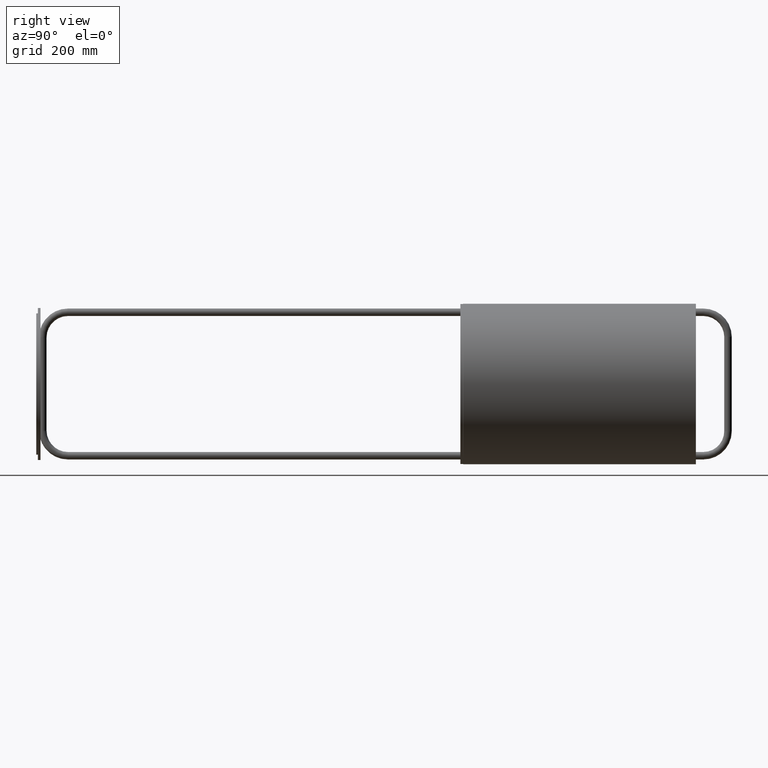
[diagram: clean part render]
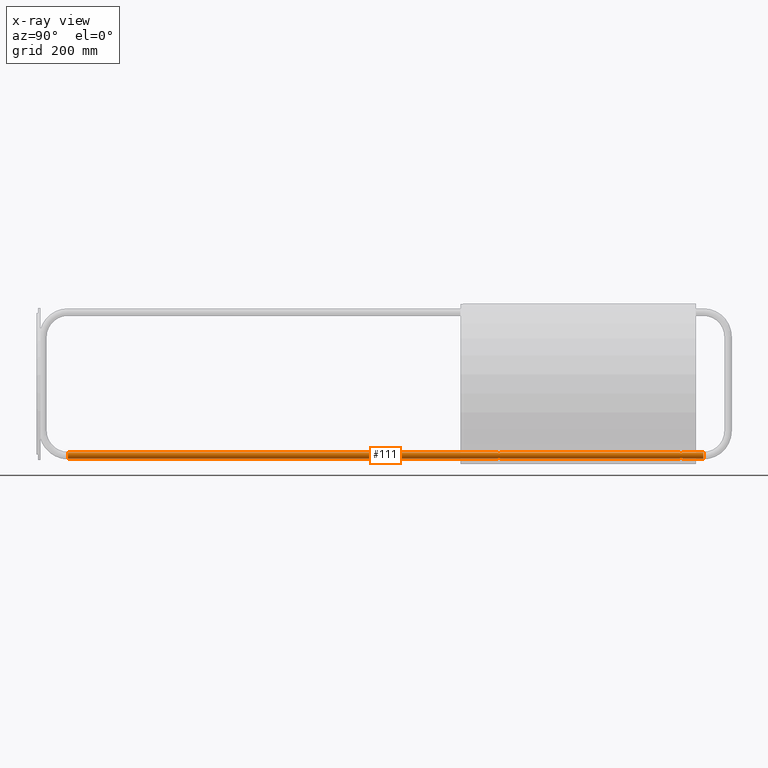
[diagram: x-ray — body ghosted, one internal face saturated and labeled with its STEP entity id]
A machine part, right view, then the same camera in x-ray: the body is ghosted and one INTERNAL B-rep face — a face not visible from any outside direction — is saturated and labeled: STEP entity #111.
In plain terms, the highlighted cylindrical surface (edge-blend (fillet) strip) has radius 5.5 mm, axis along (0, 1, -0).
Its self-contained STEP definition (entity closure, byte-faithful):
#111 = ADVANCED_FACE ( 'NONE', ( #2683 ), #2674, .F. ) ;
#180 = CARTESIAN_POINT ( 'NONE',  ( 129.3903284986868100, -692.3604678374009600, -3.000154771004491100 ) ) ;
#202 = CARTESIAN_POINT ( 'NONE',  ( 139.5000000000013100, -695.3604678334108900, -2.402268412900441000E-013 ) ) ;
#235 = CARTESIAN_POINT ( 'NONE',  ( 133.9999999999998900, 452.9999999999999400, 0.0000000000000000000 ) ) ;
#244 = VERTEX_POINT ( 'NONE', #685 ) ;
#324 = CARTESIAN_POINT ( 'NONE',  ( 128.5000000000001100, -733.9999999999997700, 6.735557395310411500E-016 ) ) ;
#351 = DIRECTION ( 'NONE',  ( 1.225411726959334000E-016, -1.000000000000000000, 0.0000000000000000000 ) ) ;
#485 = DIRECTION ( 'NONE',  ( 1.000000000000000000, 0.0000000000000000000, 0.0000000000000000000 ) ) ;
#512 = VERTEX_POINT ( 'NONE', #1271 ) ;
#540 = VERTEX_POINT ( 'NONE', #1288 ) ;
#641 = VERTEX_POINT ( 'NONE', #1299 ) ;
#659 = VERTEX_POINT ( 'NONE', #1274 ) ;
#671 = CARTESIAN_POINT ( 'NONE',  ( 139.4999999999999100, 452.9999999999999400, 0.0000000000000000000 ) ) ;
#673 = CARTESIAN_POINT ( 'NONE',  ( 128.4999999999998900, 452.9999999999999400, 6.735557395310545600E-016 ) ) ;
#678 = CARTESIAN_POINT ( 'NONE',  ( 128.5000000000000000, -349.3606748984981900, -2.412793770092744400E-016 ) ) ;
#685 = CARTESIAN_POINT ( 'NONE',  ( 128.4999999999998900, -355.3602644299789400, 1.367787707211932600E-014 ) ) ;
#770 = VERTEX_POINT ( 'NONE', #1309 ) ;
#778 = VERTEX_POINT ( 'NONE', #678 ) ;
#810 = VERTEX_POINT ( 'NONE', #1298 ) ;
#821 = VERTEX_POINT ( 'NONE', #671 ) ;
#857 = VERTEX_POINT ( 'NONE', #1096 ) ;
#931 = VERTEX_POINT ( 'NONE', #673 ) ;
#949 = CARTESIAN_POINT ( 'NONE',  ( 139.5000000000001100, -733.9999999999995500, 0.0000000000000000000 ) ) ;
#1031 = VERTEX_POINT ( 'NONE', #180 ) ;
#1036 = VERTEX_POINT ( 'NONE', #202 ) ;
#1096 = CARTESIAN_POINT ( 'NONE',  ( 139.5000000000000300, -689.3604678413933000, 6.555506183565263000E-018 ) ) ;
#1271 = CARTESIAN_POINT ( 'NONE',  ( 128.5000000000000300, -689.3604678413933000, 6.801117099907328700E-016 ) ) ;
#1273 = VERTEX_POINT ( 'NONE', #949 ) ;
#1274 = CARTESIAN_POINT ( 'NONE',  ( 139.5000000000000600, -355.3602644299787700, -4.352758386513265200E-015 ) ) ;
#1288 = CARTESIAN_POINT ( 'NONE',  ( 128.5000000000000000, -695.3604678334085100, 1.974066790351742000E-015 ) ) ;
#1298 = CARTESIAN_POINT ( 'NONE',  ( 138.6096715013132700, -692.3604678374009600, -3.000154771004491100 ) ) ;
#1299 = CARTESIAN_POINT ( 'NONE',  ( 138.6324198177129000, -352.3604696642384500, -2.964909211503968100 ) ) ;
#1309 = CARTESIAN_POINT ( 'NONE',  ( 139.5000000000000000, -349.3606748984981900, -1.010884719048124400E-014 ) ) ;
#1327 = VERTEX_POINT ( 'NONE', #1433 ) ;
#1433 = CARTESIAN_POINT ( 'NONE',  ( 129.3675801822871000, -352.3604696642384500, -2.964909211503968100 ) ) ;
#1476 = VERTEX_POINT ( 'NONE', #324 ) ;
#1524 = AXIS2_PLACEMENT_3D ( 'NONE', #7325, #7640, #7642 ) ;
#1717 = AXIS2_PLACEMENT_3D ( 'NONE', #7772, #7354, #7910 ) ;
#1788 = AXIS2_PLACEMENT_3D ( 'NONE', #235, #351, #485 ) ;
#2302 = LINE ( 'NONE', #7360, #2530 ) ;
#2324 = VECTOR ( 'NONE', #7369, 1000.000000000000000 ) ;
#2325 = LINE ( 'NONE', #7135, #2324 ) ;
#2342 = CIRCLE ( 'NONE', #1717, 5.500000000000017800 ) ;
#2382 = VECTOR ( 'NONE', #7097, 1000.000000000000000 ) ;
#2441 = VECTOR ( 'NONE', #7377, 1000.000000000000000 ) ;
#2460 = LINE ( 'NONE', #7373, #2441 ) ;
#2474 = LINE ( 'NONE', #7088, #2382 ) ;
#2530 = VECTOR ( 'NONE', #7358, 1000.000000000000000 ) ;
#2674 = CYLINDRICAL_SURFACE ( 'NONE', #1788, 5.500000000000005300 ) ;
#2683 = FACE_OUTER_BOUND ( 'NONE', #7547, .T. ) ;
#5030 = EDGE_CURVE ( 'NONE', #659, #857, #5373, .T. ) ;
#5072 = EDGE_CURVE ( 'NONE', #931, #778, #5608, .T. ) ;
#5090 = EDGE_CURVE ( 'NONE', #931, #821, #5634, .T. ) ;
#5140 = EDGE_CURVE ( 'NONE', #244, #512, #2460, .T. ) ;
#5177 = EDGE_CURVE ( 'NONE', #540, #1476, #2474, .T. ) ;
#5220 = EDGE_CURVE ( 'NONE', #1036, #810, #8520, .T. ) ;
#5248 = EDGE_CURVE ( 'NONE', #778, #1327, #8499, .T. ) ;
#5254 = EDGE_CURVE ( 'NONE', #821, #770, #2302, .T. ) ;
#5256 = EDGE_CURVE ( 'NONE', #810, #857, #8519, .T. ) ;
#5262 = EDGE_CURVE ( 'NONE', #1036, #1273, #2325, .T. ) ;
#5263 = EDGE_CURVE ( 'NONE', #1327, #244, #8522, .T. ) ;
#5273 = EDGE_CURVE ( 'NONE', #1273, #1476, #2342, .T. ) ;
#5277 = EDGE_CURVE ( 'NONE', #512, #1031, #8488, .T. ) ;
#5288 = EDGE_CURVE ( 'NONE', #659, #641, #8512, .T. ) ;
#5310 = EDGE_CURVE ( 'NONE', #1031, #540, #8467, .T. ) ;
#5324 = EDGE_CURVE ( 'NONE', #641, #770, #8523, .T. ) ;
#5373 = LINE ( 'NONE', #6887, #5452 ) ;
#5452 = VECTOR ( 'NONE', #6889, 1000.000000000000000 ) ;
#5591 = VECTOR ( 'NONE', #7055, 1000.000000000000000 ) ;
#5608 = LINE ( 'NONE', #7053, #5591 ) ;
#5634 = CIRCLE ( 'NONE', #1524, 5.500000000000016900 ) ;
#6887 = CARTESIAN_POINT ( 'NONE',  ( 139.4999999999999100, 452.9999999999999400, 0.0000000000000000000 ) ) ;
#6889 = DIRECTION ( 'NONE',  ( 1.225411726959334000E-016, -1.000000000000000000, 0.0000000000000000000 ) ) ;
#6901 = CARTESIAN_POINT ( 'NONE',  ( 129.3054100104946800, -351.5704647437008800, -2.865829638637901000 ) ) ;
#6904 = CARTESIAN_POINT ( 'NONE',  ( 129.2702676680906400, -351.3848308790015800, -2.808366290962839100 ) ) ;
#6910 = CARTESIAN_POINT ( 'NONE',  ( 128.7109486877073400, -689.7655497714604300, -1.517984646900349700 ) ) ;
#6911 = CARTESIAN_POINT ( 'NONE',  ( 128.5109921392965800, -695.3404735566675800, -0.3991109615697975800 ) ) ;
#6912 = CARTESIAN_POINT ( 'NONE',  ( 138.7289997998379100, -351.3879406329912200, -2.809640624269633700 ) ) ;
#6926 = CARTESIAN_POINT ( 'NONE',  ( 128.5852983584160500, -695.2018640558731000, -0.9824001123956338500 ) ) ;
#6928 = CARTESIAN_POINT ( 'NONE',  ( 129.2705071840289000, -353.3351880378746200, -2.808792933532755100 ) ) ;
#6972 = CARTESIAN_POINT ( 'NONE',  ( 129.3675801822871000, -352.3604696642384500, -2.964909211503968100 ) ) ;
#6973 = CARTESIAN_POINT ( 'NONE',  ( 128.8127798956855700, -694.7409975545379000, -1.836126602171227900 ) ) ;
#6974 = CARTESIAN_POINT ( 'NONE',  ( 128.8692503850907900, -694.6166605344655000, -1.986708820371480700 ) ) ;
#6975 = CARTESIAN_POINT ( 'NONE',  ( 129.3675801822871000, -352.1600011138536400, -2.964909211503967700 ) ) ;
#6976 = CARTESIAN_POINT ( 'NONE',  ( 129.0393993324539100, -694.2095474913330700, -2.393502707011776000 ) ) ;
#6977 = CARTESIAN_POINT ( 'NONE',  ( 129.1577367675882600, -693.8838387485130900, -2.614051938726942300 ) ) ;
#6978 = CARTESIAN_POINT ( 'NONE',  ( 129.3544490571718500, -351.9597904109863300, -2.944658065862295600 ) ) ;
#6991 = CARTESIAN_POINT ( 'NONE',  ( 129.3675801822871300, -352.5617134884771500, -2.964909211503968600 ) ) ;
#7053 = CARTESIAN_POINT ( 'NONE',  ( 128.4999999999998900, 452.9999999999999400, 6.735557395310463700E-016 ) ) ;
#7055 = DIRECTION ( 'NONE',  ( 1.225411726959334000E-016, -1.000000000000000000, 0.0000000000000000000 ) ) ;
#7088 = CARTESIAN_POINT ( 'NONE',  ( 128.4999999999998900, 452.9999999999999400, 6.735557395310463700E-016 ) ) ;
#7097 = DIRECTION ( 'NONE',  ( 1.225411726959334000E-016, -1.000000000000000000, 0.0000000000000000000 ) ) ;
#7120 = CARTESIAN_POINT ( 'NONE',  ( 129.3903284986868100, -692.3604678374009600, -3.000154771004491100 ) ) ;
#7133 = CARTESIAN_POINT ( 'NONE',  ( 129.1505011810251300, -690.8468161185431900, -2.597493085819792200 ) ) ;
#7135 = CARTESIAN_POINT ( 'NONE',  ( 139.4999999999999100, 452.9999999999999400, 0.0000000000000000000 ) ) ;
#7137 = CARTESIAN_POINT ( 'NONE',  ( 128.9838199801056400, -690.3785413786031300, -2.260428961014250900 ) ) ;
#7145 = CARTESIAN_POINT ( 'NONE',  ( 138.6731455099236400, -691.5689518163267200, -2.900672205300564700 ) ) ;
#7147 = CARTESIAN_POINT ( 'NONE',  ( 128.8060584457673800, -354.7285099817094100, -1.816843427645558500 ) ) ;
#7149 = CARTESIAN_POINT ( 'NONE',  ( 129.2898465204594600, -691.3773479370000800, -2.841129724818078500 ) ) ;
#7160 = CARTESIAN_POINT ( 'NONE',  ( 139.4887276517681600, -689.3809707586698300, -0.4037519345232961600 ) ) ;
#7162 = CARTESIAN_POINT ( 'NONE',  ( 139.4471143098946300, -355.2528700957439600, -0.7852039418985014000 ) ) ;
#7163 = CARTESIAN_POINT ( 'NONE',  ( 139.4455285631390200, -689.4612999057286500, -0.7970981921649953300 ) ) ;
#7166 = CARTESIAN_POINT ( 'NONE',  ( 139.1859598607927100, -689.9826788322735600, -1.839657315374034800 ) ) ;
#7173 = CARTESIAN_POINT ( 'NONE',  ( 139.3363207574694800, -689.6714248086946100, -1.344441748148243100 ) ) ;
#7176 = CARTESIAN_POINT ( 'NONE',  ( 139.4142312366697400, -689.5199710919137000, -0.9848568203722185600 ) ) ;
#7178 = CARTESIAN_POINT ( 'NONE',  ( 139.3388507071408600, -355.0368463570388800, -1.334357510062660100 ) ) ;
#7180 = CARTESIAN_POINT ( 'NONE',  ( 128.5000000000000000, -689.3604575540044800, -0.1994053511184113700 ) ) ;
#7182 = CARTESIAN_POINT ( 'NONE',  ( 139.4888870275835300, -355.3353420410430800, -0.3996482626729555600 ) ) ;
#7191 = CARTESIAN_POINT ( 'NONE',  ( 129.0410729021956500, -690.5262393973724800, -2.381942729114785000 ) ) ;
#7193 = CARTESIAN_POINT ( 'NONE',  ( 139.4160759133245600, -355.1922161032383100, -0.9746581651562091800 ) ) ;
#7197 = CARTESIAN_POINT ( 'NONE',  ( 128.5000000000000000, -695.3604678334085100, 1.974066790351742000E-015 ) ) ;
#7203 = ORIENTED_EDGE ( 'NONE', *, *, #5090, .F. ) ;
#7210 = CARTESIAN_POINT ( 'NONE',  ( 138.6231318762483800, -691.9584958556242800, -2.979738219095665800 ) ) ;
#7212 = ORIENTED_EDGE ( 'NONE', *, *, #5248, .T. ) ;
#7215 = CARTESIAN_POINT ( 'NONE',  ( 138.7093120577069400, -691.3808631668146100, -2.842568169159953100 ) ) ;
#7220 = CARTESIAN_POINT ( 'NONE',  ( 138.7982276861438900, -691.0169847216809600, -2.689762986790444500 ) ) ;
#7240 = CARTESIAN_POINT ( 'NONE',  ( 139.2890559412766400, -689.7655277481096600, -1.518026997720507200 ) ) ;
#7244 = CARTESIAN_POINT ( 'NONE',  ( 138.8495334148448700, -690.8467378753042600, -2.597414944113780200 ) ) ;
#7245 = ORIENTED_EDGE ( 'NONE', *, *, #5288, .T. ) ;
#7248 = CARTESIAN_POINT ( 'NONE',  ( 139.1923416890035700, -354.7249398517893200, -1.821377796447446900 ) ) ;
#7250 = CARTESIAN_POINT ( 'NONE',  ( 138.9587058030505800, -690.5268646256953400, -2.382388610700456200 ) ) ;
#7252 = CARTESIAN_POINT ( 'NONE',  ( 128.5538586461646800, -689.4601546451614200, -0.7924817438538714900 ) ) ;
#7255 = CARTESIAN_POINT ( 'NONE',  ( 128.6599727552263100, -355.0392371154602500, -1.329424649231750500 ) ) ;
#7256 = CARTESIAN_POINT ( 'NONE',  ( 129.2023711005417100, -691.0195071905252500, -2.690784431565578200 ) ) ;
#7259 = CARTESIAN_POINT ( 'NONE',  ( 128.7052988399744600, -354.9463585645386300, -1.498028215818120400 ) ) ;
#7261 = CARTESIAN_POINT ( 'NONE',  ( 129.3260983200751800, -691.5641923386098100, -2.899463210017676500 ) ) ;
#7263 = CARTESIAN_POINT ( 'NONE',  ( 139.2931840942175100, -354.9431863144438900, -1.503340093751044200 ) ) ;
#7270 = CARTESIAN_POINT ( 'NONE',  ( 138.6096715013132700, -692.3604678374009600, -3.000154771004491100 ) ) ;
#7272 = CARTESIAN_POINT ( 'NONE',  ( 128.8702569774019900, -690.1065490167721900, -1.989305809041421700 ) ) ;
#7273 = ORIENTED_EDGE ( 'NONE', *, *, #5256, .T. ) ;
#7277 = CARTESIAN_POINT ( 'NONE',  ( 139.5000000000000900, -355.3579355432868900, -0.1990887753752997000 ) ) ;
#7283 = CARTESIAN_POINT ( 'NONE',  ( 128.5112380971666000, -689.3809129267388000, -0.4024620905150486100 ) ) ;
#7289 = CARTESIAN_POINT ( 'NONE',  ( 128.5000000000000300, -355.3579358156361000, -0.1990654931491489500 ) ) ;
#7292 = CARTESIAN_POINT ( 'NONE',  ( 128.5107730919152700, -355.3360198115115100, -0.3952231710968299200 ) ) ;
#7294 = CARTESIAN_POINT ( 'NONE',  ( 128.5523912953412900, -355.2538395691785800, -0.7819033216073747500 ) ) ;
#7297 = CARTESIAN_POINT ( 'NONE',  ( 128.4999999999998900, -355.3602644299789400, 1.367787707211932600E-014 ) ) ;
#7300 = CARTESIAN_POINT ( 'NONE',  ( 128.5836344305019200, -355.1927747273665000, -0.9727511965893216300 ) ) ;
#7319 = ORIENTED_EDGE ( 'NONE', *, *, #5072, .T. ) ;
#7325 = CARTESIAN_POINT ( 'NONE',  ( 133.9999999999998900, 452.9999999999999400, 0.0000000000000000000 ) ) ;
#7347 = CARTESIAN_POINT ( 'NONE',  ( 129.3063383480588600, -353.1444537685594600, -2.867337713936700000 ) ) ;
#7349 = CARTESIAN_POINT ( 'NONE',  ( 129.3545953090643400, -352.7586081908141300, -2.944876996769128800 ) ) ;
#7350 = CARTESIAN_POINT ( 'NONE',  ( 129.3675801822871000, -352.3604696642384500, -2.964909211503968100 ) ) ;
#7354 = DIRECTION ( 'NONE',  ( -2.807720014556424100E-014, 1.000000000000000000, 0.0000000000000000000 ) ) ;
#7358 = DIRECTION ( 'NONE',  ( 1.225411726959334000E-016, -1.000000000000000000, 0.0000000000000000000 ) ) ;
#7360 = CARTESIAN_POINT ( 'NONE',  ( 139.4999999999999100, 452.9999999999999400, 0.0000000000000000000 ) ) ;
#7369 = DIRECTION ( 'NONE',  ( 1.225411726959334000E-016, -1.000000000000000000, 0.0000000000000000000 ) ) ;
#7373 = CARTESIAN_POINT ( 'NONE',  ( 128.4999999999998900, 452.9999999999999400, 6.735557395310463700E-016 ) ) ;
#7377 = DIRECTION ( 'NONE',  ( 1.225411726959334000E-016, -1.000000000000000000, 0.0000000000000000000 ) ) ;
#7547 = EDGE_LOOP ( 'NONE', ( #7203, #7319, #7212, #7669, #7553, #7551, #7770, #7763, #7797, #7639, #7710, #7273, #7617, #7245, #7627, #7628 ) ) ;
#7551 = ORIENTED_EDGE ( 'NONE', *, *, #5277, .T. ) ;
#7553 = ORIENTED_EDGE ( 'NONE', *, *, #5140, .T. ) ;
#7617 = ORIENTED_EDGE ( 'NONE', *, *, #5030, .F. ) ;
#7627 = ORIENTED_EDGE ( 'NONE', *, *, #5324, .T. ) ;
#7628 = ORIENTED_EDGE ( 'NONE', *, *, #5254, .F. ) ;
#7639 = ORIENTED_EDGE ( 'NONE', *, *, #5262, .F. ) ;
#7640 = DIRECTION ( 'NONE',  ( 1.232687704539891700E-015, -1.000000000000000000, 0.0000000000000000000 ) ) ;
#7642 = DIRECTION ( 'NONE',  ( 0.0000000000000000000, 0.0000000000000000000, 1.000000000000000000 ) ) ;
#7669 = ORIENTED_EDGE ( 'NONE', *, *, #5263, .T. ) ;
#7710 = ORIENTED_EDGE ( 'NONE', *, *, #5220, .T. ) ;
#7763 = ORIENTED_EDGE ( 'NONE', *, *, #5177, .T. ) ;
#7770 = ORIENTED_EDGE ( 'NONE', *, *, #5310, .T. ) ;
#7772 = CARTESIAN_POINT ( 'NONE',  ( 134.0000000000001100, -733.9999999999996600, 0.0000000000000000000 ) ) ;
#7797 = ORIENTED_EDGE ( 'NONE', *, *, #5273, .F. ) ;
#7910 = DIRECTION ( 'NONE',  ( 0.0000000000000000000, 0.0000000000000000000, -1.000000000000000000 ) ) ;
#7931 = CARTESIAN_POINT ( 'NONE',  ( 139.1371702323614300, -354.6002064092467700, -1.969870112642094800 ) ) ;
#7932 = CARTESIAN_POINT ( 'NONE',  ( 138.9712755023261900, -354.1928185507083000, -2.370663389799335400 ) ) ;
#7959 = CARTESIAN_POINT ( 'NONE',  ( 138.6324198177129000, -352.3604696642384500, -2.964909211503968100 ) ) ;
#7991 = CARTESIAN_POINT ( 'NONE',  ( 128.5533847139718400, -695.2616685583442400, -0.7892266977960915600 ) ) ;
#7992 = CARTESIAN_POINT ( 'NONE',  ( 128.6633910439640000, -695.0500859321384700, -1.343394468710873900 ) ) ;
#7996 = CARTESIAN_POINT ( 'NONE',  ( 129.1350253533716500, -350.8574112162594900, -2.568301928118422900 ) ) ;
#7998 = CARTESIAN_POINT ( 'NONE',  ( 129.2900713645919400, -693.3427567178681600, -2.841525547473618700 ) ) ;
#8001 = CARTESIAN_POINT ( 'NONE',  ( 129.1853789184714000, -351.0291255447059500, -2.660209201740585200 ) ) ;
#8004 = CARTESIAN_POINT ( 'NONE',  ( 129.3767314373603800, -691.9563209032396600, -2.979535470095551200 ) ) ;
#8023 = CARTESIAN_POINT ( 'NONE',  ( 129.3270599134863500, -693.1506841452026000, -2.901000522434883600 ) ) ;
#8024 = CARTESIAN_POINT ( 'NONE',  ( 129.0285210983003900, -350.5379052367458700, -2.355536167471957900 ) ) ;
#8027 = CARTESIAN_POINT ( 'NONE',  ( 128.8620868927107800, -350.1190006645638300, -1.967947047902461900 ) ) ;
#8028 = CARTESIAN_POINT ( 'NONE',  ( 128.9727529729343000, -350.3905805936620400, -2.235565702515000600 ) ) ;
#8031 = CARTESIAN_POINT ( 'NONE',  ( 129.3903284986868700, -692.5633903557754800, -3.000154771004491100 ) ) ;
#8032 = CARTESIAN_POINT ( 'NONE',  ( 129.3769037286717800, -692.7618607669325000, -2.979790923763731200 ) ) ;
#8038 = CARTESIAN_POINT ( 'NONE',  ( 128.5000000000000300, -689.3604678413933000, 6.801117099907328700E-016 ) ) ;
#8051 = CARTESIAN_POINT ( 'NONE',  ( 138.6324198177128700, -352.5584485456419100, -2.964909211503963200 ) ) ;
#8055 = CARTESIAN_POINT ( 'NONE',  ( 139.0154542618837500, -694.3405596064825400, -2.262026038741256100 ) ) ;
#8056 = CARTESIAN_POINT ( 'NONE',  ( 139.5000000000000600, -695.3604781578624200, -0.2001237943026859300 ) ) ;
#8057 = CARTESIAN_POINT ( 'NONE',  ( 128.8610691499288000, -354.6042976500248200, -1.965291412623374700 ) ) ;
#8058 = CARTESIAN_POINT ( 'NONE',  ( 128.7097488676921000, -694.9578370102383400, -1.513887798656124800 ) ) ;
#8063 = CARTESIAN_POINT ( 'NONE',  ( 129.1420471132781200, -353.8732181695818900, -2.584564549306624000 ) ) ;
#8072 = CARTESIAN_POINT ( 'NONE',  ( 139.2886903078039600, -694.9546635651713600, -1.519286662778335500 ) ) ;
#8073 = CARTESIAN_POINT ( 'NONE',  ( 139.3354389315587100, -695.0477856116449400, -1.348302127749869700 ) ) ;
#8105 = CARTESIAN_POINT ( 'NONE',  ( 138.6096715013132700, -692.1614458254638300, -3.000154771004498700 ) ) ;
#8111 = CARTESIAN_POINT ( 'NONE',  ( 138.6938636141726700, -351.5752183387312500, -2.867009162968386300 ) ) ;
#8126 = CARTESIAN_POINT ( 'NONE',  ( 139.5000000000000300, -689.3604574200228400, -0.2020023849474726100 ) ) ;
#8132 = CARTESIAN_POINT ( 'NONE',  ( 139.5000000000000300, -689.3604678413933000, 6.555506183565263000E-018 ) ) ;
#8133 = CARTESIAN_POINT ( 'NONE',  ( 138.8562564839772600, -353.8671644311648900, -2.587633936942578900 ) ) ;
#8134 = CARTESIAN_POINT ( 'NONE',  ( 138.7290392171061900, -353.3327544717556600, -2.809529709848012300 ) ) ;
#8136 = CARTESIAN_POINT ( 'NONE',  ( 139.0170737211140000, -690.3762969062185000, -2.258442325617870900 ) ) ;
#8137 = CARTESIAN_POINT ( 'NONE',  ( 139.1305032589566200, -690.1048337061267800, -1.987341634211327700 ) ) ;
#8170 = CARTESIAN_POINT ( 'NONE',  ( 139.5000000000013100, -695.3604678334108900, -2.402268412900441000E-013 ) ) ;
#8171 = CARTESIAN_POINT ( 'NONE',  ( 138.6096715013132700, -692.3604678374009600, -3.000154771004491100 ) ) ;
#8177 = CARTESIAN_POINT ( 'NONE',  ( 138.7967909306651400, -693.6984568550941500, -2.692272601443655800 ) ) ;
#8178 = CARTESIAN_POINT ( 'NONE',  ( 138.7094408571966800, -693.3402081131588400, -2.842305719932567900 ) ) ;
#8200 = CARTESIAN_POINT ( 'NONE',  ( 139.1855999928086500, -694.7374728996883300, -1.840660166934398000 ) ) ;
#8201 = CARTESIAN_POINT ( 'NONE',  ( 139.1289611627054800, -694.6126092118121300, -1.991306265859233500 ) ) ;
#8202 = CARTESIAN_POINT ( 'NONE',  ( 139.4886949924948900, -695.3398997299630100, -0.4033067972729224600 ) ) ;
#8203 = CARTESIAN_POINT ( 'NONE',  ( 139.4460539970096700, -695.2606172234437700, -0.7930478894868238100 ) ) ;
#8258 = CARTESIAN_POINT ( 'NONE',  ( 128.4999999999999700, -349.3629899360372000, -0.1979048573597171300 ) ) ;
#8260 = CARTESIAN_POINT ( 'NONE',  ( 128.5528329407643200, -349.4679658511257700, -0.7848641024950892000 ) ) ;
#8261 = CARTESIAN_POINT ( 'NONE',  ( 128.5833778580338300, -349.5276384731610100, -0.9717864868088967900 ) ) ;
#8262 = CARTESIAN_POINT ( 'NONE',  ( 128.7065151552086200, -349.7771402257372400, -1.502211398794202500 ) ) ;
#8263 = CARTESIAN_POINT ( 'NONE',  ( 128.5110689275893500, -349.3855095663900000, -0.3990943659495450000 ) ) ;
#8265 = CARTESIAN_POINT ( 'NONE',  ( 128.5000000000000000, -349.3606748984981900, -2.412793770092744400E-016 ) ) ;
#8269 = CARTESIAN_POINT ( 'NONE',  ( 128.6608422841011100, -349.6834612469805300, -1.333251397726550800 ) ) ;
#8270 = CARTESIAN_POINT ( 'NONE',  ( 139.5000000000000000, -349.3606748984981900, -1.010884719048124400E-014 ) ) ;
#8271 = CARTESIAN_POINT ( 'NONE',  ( 139.4889346073227600, -349.3855072824245600, -0.3999750528530346400 ) ) ;
#8278 = CARTESIAN_POINT ( 'NONE',  ( 138.6454727641841200, -351.9614411868002400, -2.944771632270055700 ) ) ;
#8279 = CARTESIAN_POINT ( 'NONE',  ( 138.6324198177129000, -352.1629013785036500, -2.964909211503971700 ) ) ;
#8284 = CARTESIAN_POINT ( 'NONE',  ( 138.8152232419321300, -351.0265621418034800, -2.659162400977096200 ) ) ;
#8285 = CARTESIAN_POINT ( 'NONE',  ( 138.8650377719739600, -350.8572395720786400, -2.568168286130834100 ) ) ;
#8286 = CARTESIAN_POINT ( 'NONE',  ( 139.0281212210584600, -350.3883315787435900, -2.233597053848901400 ) ) ;
#8287 = CARTESIAN_POINT ( 'NONE',  ( 138.9712759078395500, -350.5384965008815900, -2.355949217779374400 ) ) ;
#8288 = CARTESIAN_POINT ( 'NONE',  ( 139.1386630915841900, -350.1172654028607100, -1.965985870705001100 ) ) ;
#8289 = CARTESIAN_POINT ( 'NONE',  ( 139.1927936882104900, -349.9949931012017700, -1.820085276179755700 ) ) ;
#8290 = CARTESIAN_POINT ( 'NONE',  ( 139.2935363299881400, -349.7770190632494400, -1.502095144782899200 ) ) ;
#8291 = CARTESIAN_POINT ( 'NONE',  ( 139.3396785806006100, -349.6824169355657500, -1.330741686114301100 ) ) ;
#8292 = CARTESIAN_POINT ( 'NONE',  ( 139.4158909328227500, -349.5291059102349300, -0.9752774902846250700 ) ) ;
#8293 = CARTESIAN_POINT ( 'NONE',  ( 139.4465638082341700, -349.4691521101622700, -0.7895098791045837000 ) ) ;
#8294 = CARTESIAN_POINT ( 'NONE',  ( 139.5000000000000600, -349.3630180310630600, -0.2003066076434018800 ) ) ;
#8298 = CARTESIAN_POINT ( 'NONE',  ( 128.4999999999999700, -695.3604782080140000, -0.2010959149938181000 ) ) ;
#8300 = CARTESIAN_POINT ( 'NONE',  ( 128.8136903931782600, -689.9819299306879000, -1.838622809191452500 ) ) ;
#8313 = CARTESIAN_POINT ( 'NONE',  ( 129.3903284986868400, -692.1583019656163700, -3.000154771004491600 ) ) ;
#8318 = CARTESIAN_POINT ( 'NONE',  ( 128.8068759887932200, -349.9942686522575200, -1.819088753450838400 ) ) ;
#8327 = CARTESIAN_POINT ( 'NONE',  ( 138.6096715013132700, -692.5598984915460500, -3.000154771004484500 ) ) ;
#8329 = CARTESIAN_POINT ( 'NONE',  ( 138.6226636458833400, -692.7579650666632500, -2.980468650941765900 ) ) ;
#8330 = CARTESIAN_POINT ( 'NONE',  ( 138.8481472495005800, -693.8698819577241500, -2.600035558966423000 ) ) ;
#8333 = CARTESIAN_POINT ( 'NONE',  ( 138.9580732934868800, -694.1924675823333900, -2.383741990472791000 ) ) ;
#8335 = CARTESIAN_POINT ( 'NONE',  ( 138.6729637140574600, -693.1513851079155300, -2.900969267214122700 ) ) ;
#8336 = CARTESIAN_POINT ( 'NONE',  ( 139.4145608073592400, -695.2016162066265700, -0.9835438391326404300 ) ) ;
#8370 = CARTESIAN_POINT ( 'NONE',  ( 129.3903284986868100, -692.3604678374009600, -3.000154771004491100 ) ) ;
#8375 = CARTESIAN_POINT ( 'NONE',  ( 138.6934848413151300, -353.1437786172917900, -2.867630316944525000 ) ) ;
#8376 = CARTESIAN_POINT ( 'NONE',  ( 138.6450086709495800, -352.7546944291645400, -2.945504716872402900 ) ) ;
#8417 = CARTESIAN_POINT ( 'NONE',  ( 129.0269193516600400, -354.1977050437268400, -2.366937121785466200 ) ) ;
#8424 = CARTESIAN_POINT ( 'NONE',  ( 128.5850067943032400, -689.5184960541814700, -0.9812221593091946500 ) ) ;
#8429 = CARTESIAN_POINT ( 'NONE',  ( 128.6641308470278200, -689.6722965389581100, -1.346643503686642000 ) ) ;
#8451 = CARTESIAN_POINT ( 'NONE',  ( 139.5000000000000600, -355.3602644299787700, -4.352758386513265200E-015 ) ) ;
#8459 = CARTESIAN_POINT ( 'NONE',  ( 138.6324198177129000, -352.3604696642384500, -2.964909211503968100 ) ) ;
#8467 = B_SPLINE_CURVE_WITH_KNOTS ( 'NONE', 3,
 ( #8370, #8031, #8032, #8023, #7998, #6977, #6976, #6974, #6973, #8058, #7992, #6926, #7991, #6911, #8298, #7197 ),
 .UNSPECIFIED., .F., .F.,
 ( 4, 2, 2, 2, 2, 2, 2, 4 ),
 ( 8.673617379884035500E-019, 0.0005988684454882860300, 0.001197736890976571200, 0.002395473781953457200, 0.002994342227441911800, 0.003593210672930365400, 0.004192079118418820400, 0.004790947563907274400 ),
 .UNSPECIFIED. ) ;
#8488 = B_SPLINE_CURVE_WITH_KNOTS ( 'NONE', 3,
 ( #8038, #7180, #7283, #7252, #8424, #8429, #6910, #8300, #7272, #7137, #7191, #7133, #7256, #7149, #7261, #8004, #8313, #7120 ),
 .UNSPECIFIED., .F., .F.,
 ( 4, 2, 2, 2, 2, 2, 2, 2, 4 ),
 ( 0.01435754932270693300, 0.01495418473969452100, 0.01555082015668211000, 0.01614745557366970000, 0.01674409099065728900, 0.01734072640764487700, 0.01793736182463246500, 0.01853399724162005400, 0.01913063265860764200 ),
 .UNSPECIFIED. ) ;
#8499 = B_SPLINE_CURVE_WITH_KNOTS ( 'NONE', 3,
 ( #8265, #8258, #8263, #8260, #8261, #8269, #8262, #8318, #8027, #8028, #8024, #7996, #8001, #6904, #6901, #6978, #6975, #6972 ),
 .UNSPECIFIED., .F., .F.,
 ( 4, 2, 2, 2, 2, 2, 2, 2, 4 ),
 ( 0.01439754993129414300, 0.01498921289959819100, 0.01558087586790223700, 0.01617253883620628500, 0.01676420180451033300, 0.01735586477281438100, 0.01794752774111842800, 0.01853919070942247600, 0.01913085367772652400 ),
 .UNSPECIFIED. ) ;
#8512 = B_SPLINE_CURVE_WITH_KNOTS ( 'NONE', 3,
 ( #8451, #7277, #7182, #7162, #7193, #7178, #7263, #7248, #7931, #7932, #8133, #8134, #8375, #8376, #8051, #8459 ),
 .UNSPECIFIED., .F., .F.,
 ( 4, 2, 2, 2, 2, 2, 2, 4 ),
 ( 0.009657421830369840000, 0.01025034452255177400, 0.01084326721473370800, 0.01143618990691564300, 0.01202911259909757700, 0.01321495798346144700, 0.01380788067564331400, 0.01440080336782518200 ),
 .UNSPECIFIED. ) ;
#8519 = B_SPLINE_CURVE_WITH_KNOTS ( 'NONE', 3,
 ( #7270, #8105, #7210, #7145, #7215, #7220, #7244, #7250, #8136, #8137, #7166, #7240, #7173, #7176, #7163, #7160, #8126, #8132 ),
 .UNSPECIFIED., .F., .F.,
 ( 4, 2, 2, 2, 2, 2, 2, 2, 4 ),
 ( 0.01436130810506876100, 0.01495795819294662600, 0.01555460828082449100, 0.01615125836870235900, 0.01674790845658022400, 0.01734455854445808900, 0.01794120863233595500, 0.01853785872021382000, 0.01913450880809168500 ),
 .UNSPECIFIED. ) ;
#8520 = B_SPLINE_CURVE_WITH_KNOTS ( 'NONE', 3,
 ( #8170, #8056, #8202, #8203, #8336, #8073, #8072, #8200, #8201, #8055, #8333, #8330, #8177, #8178, #8335, #8329, #8327, #8171 ),
 .UNSPECIFIED., .F., .F.,
 ( 4, 2, 2, 2, 2, 2, 2, 2, 4 ),
 ( 0.009578306821425205600, 0.01017618198188064900, 0.01077405714233609300, 0.01137193230279153800, 0.01196980746324698100, 0.01256768262370242700, 0.01316555778415787200, 0.01376343294461331500, 0.01436130810506876100 ),
 .UNSPECIFIED. ) ;
#8522 = B_SPLINE_CURVE_WITH_KNOTS ( 'NONE', 3,
 ( #7350, #6991, #7349, #7347, #6928, #8063, #8417, #8057, #7147, #7259, #7255, #7300, #7294, #7292, #7289, #7297 ),
 .UNSPECIFIED., .F., .F.,
 ( 4, 2, 2, 2, 2, 2, 2, 4 ),
 ( 0.0000000000000000000, 0.0005939511118993671700, 0.001187902223798734300, 0.002375804447597319500, 0.002969755559496555600, 0.003563706671395792100, 0.004157657783295027300, 0.004751608895194264200 ),
 .UNSPECIFIED. ) ;
#8523 = B_SPLINE_CURVE_WITH_KNOTS ( 'NONE', 3,
 ( #7959, #8279, #8278, #8111, #6912, #8284, #8285, #8287, #8286, #8288, #8289, #8290, #8291, #8292, #8293, #8271, #8294, #8270 ),
 .UNSPECIFIED., .F., .F.,
 ( 4, 2, 2, 2, 2, 2, 2, 2, 4 ),
 ( 0.01440080336782518200, 0.01499249637587411600, 0.01558418938392304800, 0.01617588239197198200, 0.01676757540002091600, 0.01735926840806984900, 0.01795096141611878300, 0.01854265442416771400, 0.01913434743221664700 ),
 .UNSPECIFIED. ) ;